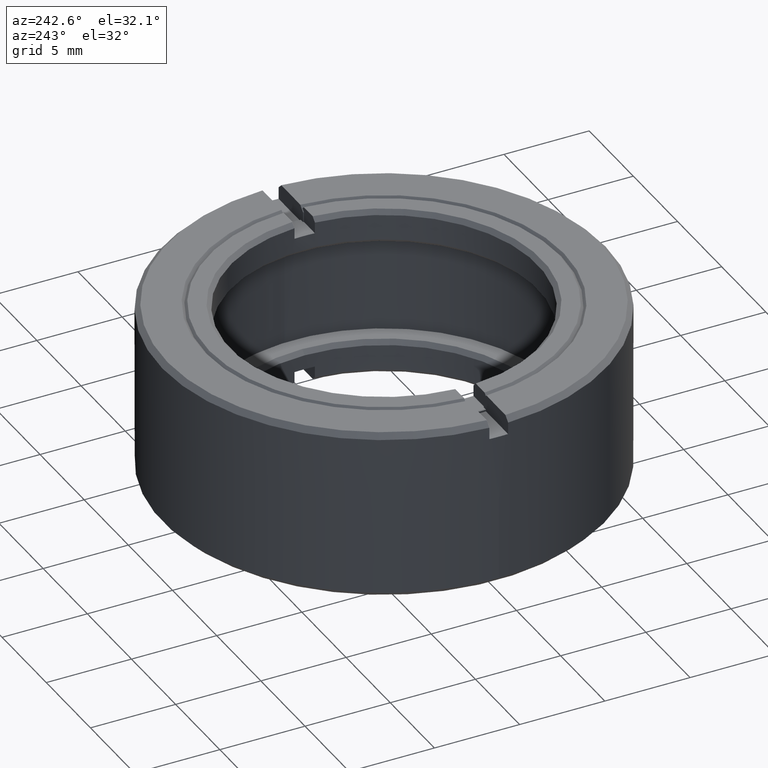
[diagram: clean part render]
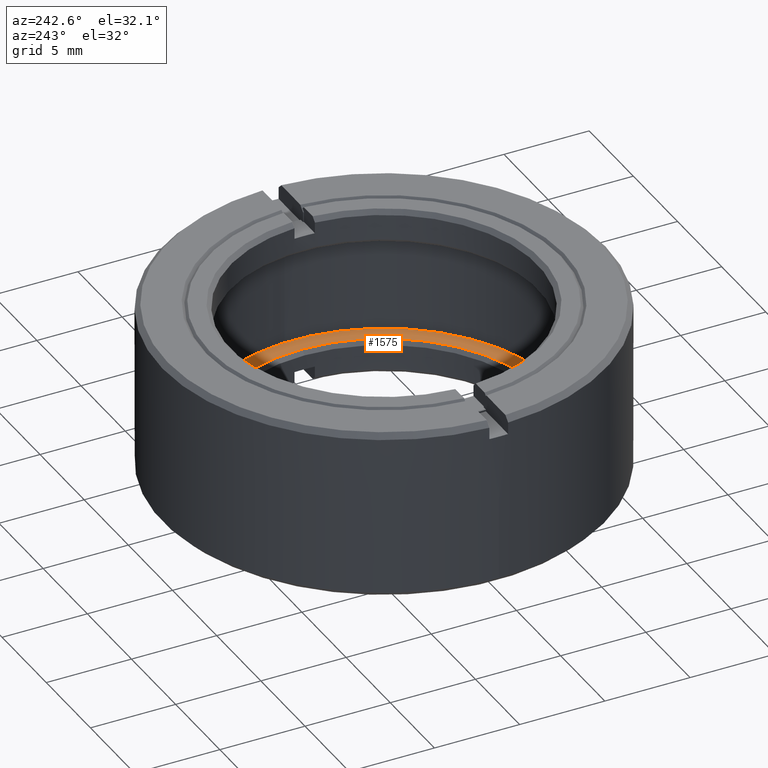
[diagram: same view with one face highlighted and labeled with its STEP entity id]
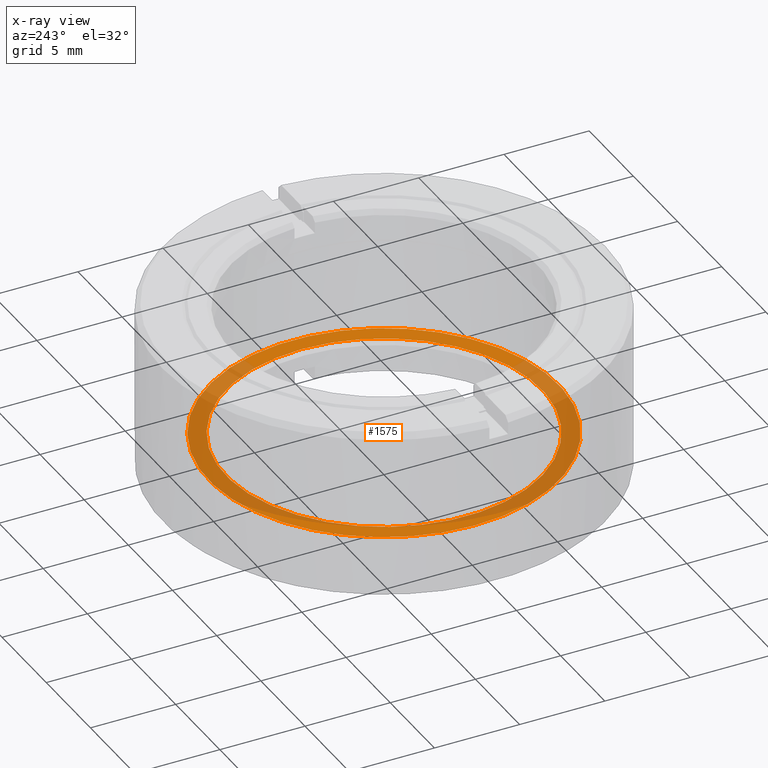
[diagram: x-ray of the same camera — body ghosted, the highlighted face saturated]
A machine part, auxiliary view. The second image highlights one B-rep face of the part: STEP entity #1575.
The next image is the same camera in x-ray: the body ghosted, the highlighted face saturated — about 58% of this face is hidden behind the body in this view.
In plain terms, the highlighted planar face has unit normal (0, 0, -1).
Its self-contained STEP definition (entity closure, byte-faithful):
#14 = CARTESIAN_POINT ( 'NONE',  ( 0.000000000000000000, 0.000000000000000000, -3.000000000000000000 ) ) ;
#39 = AXIS2_PLACEMENT_3D ( 'NONE', #121, #112, #606 ) ;
#68 = CARTESIAN_POINT ( 'NONE',  ( 9.250000000000000000, 0.000000000000000000, -3.000000000000000000 ) ) ;
#112 = DIRECTION ( 'NONE',  ( 0.000000000000000000, 0.000000000000000000, -1.000000000000000000 ) ) ;
#121 = CARTESIAN_POINT ( 'NONE',  ( 0.000000000000000000, 0.000000000000000000, -3.000000000000000000 ) ) ;
#295 = CIRCLE ( 'NONE', #39, 10.25000000000000000 ) ;
#437 = EDGE_LOOP ( 'NONE', ( #1299 ) ) ;
#454 = EDGE_CURVE ( 'NONE', #1162, #1162, #295, .T. ) ;
#510 = EDGE_CURVE ( 'NONE', #1042, #1042, #1489, .T. ) ;
#554 = CARTESIAN_POINT ( 'NONE',  ( -10.25000000000000000, 0.000000000000000000, -3.000000000000000000 ) ) ;
#606 = DIRECTION ( 'NONE',  ( -1.000000000000000000, 0.000000000000000000, 0.000000000000000000 ) ) ;
#638 = DIRECTION ( 'NONE',  ( 0.000000000000000000, 0.000000000000000000, 1.000000000000000000 ) ) ;
#670 = EDGE_LOOP ( 'NONE', ( #1319 ) ) ;
#672 = CARTESIAN_POINT ( 'NONE',  ( 0.000000000000000000, 0.000000000000000000, -3.000000000000000000 ) ) ;
#780 = AXIS2_PLACEMENT_3D ( 'NONE', #14, #638, #1547 ) ;
#782 = FACE_BOUND ( 'NONE', #437, .T. ) ;
#992 = AXIS2_PLACEMENT_3D ( 'NONE', #672, #1318, #1439 ) ;
#1033 = PLANE ( 'NONE',  #992 ) ;
#1042 = VERTEX_POINT ( 'NONE', #68 ) ;
#1162 = VERTEX_POINT ( 'NONE', #554 ) ;
#1181 = FACE_OUTER_BOUND ( 'NONE', #670, .T. ) ;
#1299 = ORIENTED_EDGE ( 'NONE', *, *, #510, .F. ) ;
#1318 = DIRECTION ( 'NONE',  ( 0.000000000000000000, 0.000000000000000000, -1.000000000000000000 ) ) ;
#1319 = ORIENTED_EDGE ( 'NONE', *, *, #454, .F. ) ;
#1439 = DIRECTION ( 'NONE',  ( -1.000000000000000000, 0.000000000000000000, 0.000000000000000000 ) ) ;
#1489 = CIRCLE ( 'NONE', #780, 9.250000000000000000 ) ;
#1547 = DIRECTION ( 'NONE',  ( 1.000000000000000000, 0.000000000000000000, 0.000000000000000000 ) ) ;
#1575 = ADVANCED_FACE ( 'NONE', ( #782, #1181 ), #1033, .F. ) ;